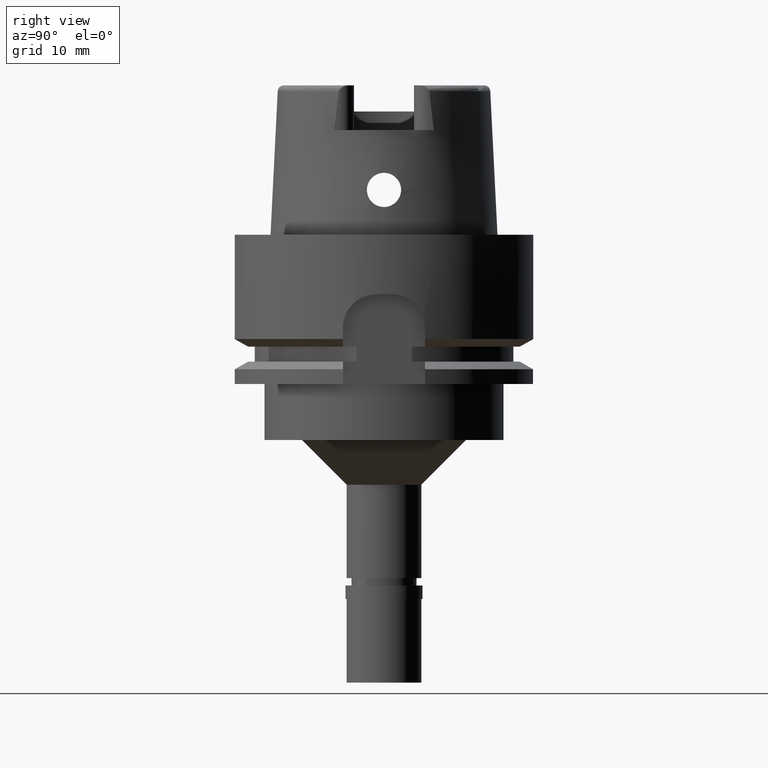
[diagram: clean part render]
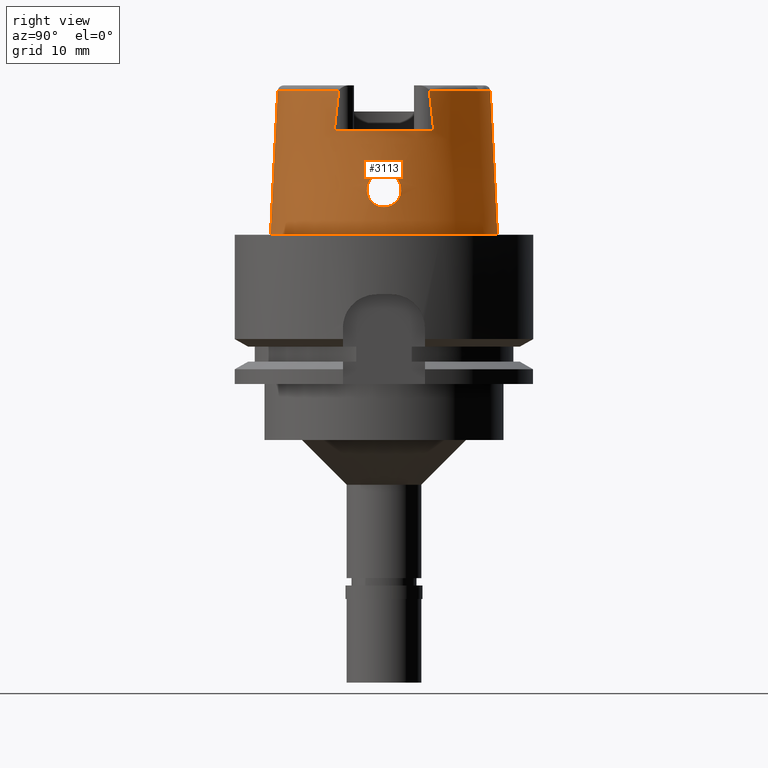
[diagram: same view with one face highlighted and labeled with its STEP entity id]
A machine part, right view. The second image highlights one B-rep face of the part: STEP entity #3113.
In plain terms, the highlighted conical surface has half-angle 2.862 deg.
Its self-contained STEP definition (entity closure, byte-faithful):
#4 = AXIS2_PLACEMENT_3D ( 'NONE', #3296, #374, #4909 ) ;
#13 = CARTESIAN_POINT ( 'NONE',  ( 14.76094070322126406, 1.037310355699659459, 8.053147813454565096 ) ) ;
#39 = EDGE_CURVE ( 'NONE', #3700, #982, #4538, .T. ) ;
#85 = EDGE_LOOP ( 'NONE', ( #4345, #4545, #4017, #4372, #320, #3348, #1562, #503 ) ) ;
#99 = CARTESIAN_POINT ( 'NONE',  ( 12.87997705758999878, 6.068458167862999630, 19.23995141520000018 ) ) ;
#102 = CARTESIAN_POINT ( 'NONE',  ( 14.89626188648040639, 1.604318472934507023, 4.351884099018325180 ) ) ;
#108 = CARTESIAN_POINT ( 'NONE',  ( 14.72916566287326035, -1.626401404984489041, 7.626291570296807265 ) ) ;
#134 = CARTESIAN_POINT ( 'NONE',  ( 14.78353131250833030, -0.2842489653174097852, 8.287348380407511428 ) ) ;
#197 = EDGE_CURVE ( 'NONE', #3015, #5026, #1791, .T. ) ;
#215 = CARTESIAN_POINT ( 'NONE',  ( 14.75228683028402976, -1.217300503844460646, 7.951661517476503072 ) ) ;
#241 = CARTESIAN_POINT ( 'NONE',  ( 14.72809888189785177, -2.300253304591252768, 5.867089944027784831 ) ) ;
#269 = CARTESIAN_POINT ( 'NONE',  ( 15.01500049747999910, 0.0000000000000000000, 3.700000000000000178 ) ) ;
#291 = CARTESIAN_POINT ( 'NONE',  ( 14.76141306264822717, -2.228997816798206077, 5.427562867233243438 ) ) ;
#306 = CARTESIAN_POINT ( 'NONE',  ( 14.72921064385401735, 2.295954934076307463, 5.859146087645040524 ) ) ;
#319 = CARTESIAN_POINT ( 'NONE',  ( 14.70192206656660083, -2.184506991194296255, 6.735960375493996288 ) ) ;
#320 = ORIENTED_EDGE ( 'NONE', *, *, #2165, .F. ) ;
#337 = CARTESIAN_POINT ( 'NONE',  ( 14.70331966261007572, 2.224938590170226327, 6.587761534168429911 ) ) ;
#348 = CARTESIAN_POINT ( 'NONE',  ( 14.83932822437654941, -1.921452617470660540, 4.735836555397628267 ) ) ;
#361 = CARTESIAN_POINT ( 'NONE',  ( 14.76237883554666297, 1.004884296207159577, 8.069153954156249142 ) ) ;
#374 = DIRECTION ( 'NONE',  ( 0.0000000000000000000, 0.0000000000000000000, -1.000000000000000000 ) ) ;
#384 = CARTESIAN_POINT ( 'NONE',  ( 14.76721441685659997, 0.8881538948534819511, 8.121605187691271155 ) ) ;
#408 = CARTESIAN_POINT ( 'NONE',  ( 14.73141757031467236, 2.293500492585035744, 5.823468428067456237 ) ) ;
#443 = CARTESIAN_POINT ( 'NONE',  ( 12.88000000000000078, -6.263516040874591795, 17.57678619938961972 ) ) ;
#503 = ORIENTED_EDGE ( 'NONE', *, *, #4093, .T. ) ;
#506 = CARTESIAN_POINT ( 'NONE',  ( 14.74979855528609640, -1.265112221199402143, 7.920818573383724193 ) ) ;
#567 = VERTEX_POINT ( 'NONE', #3869 ) ;
#584 = CARTESIAN_POINT ( 'NONE',  ( 14.76993198125134299, -0.8162504945633229925, 8.150452494257743652 ) ) ;
#611 = CARTESIAN_POINT ( 'NONE',  ( 14.77914664147333390, -0.5065101421381494884, 8.244802329342256542 ) ) ;
#632 = CARTESIAN_POINT ( 'NONE',  ( 14.70534999502817008, -2.059698684870206353, 7.024110674865093884 ) ) ;
#647 = CARTESIAN_POINT ( 'NONE',  ( 14.91309969645803690, 1.491601944798906176, 4.248719662418796617 ) ) ;
#654 = CARTESIAN_POINT ( 'NONE',  ( 14.83194585459770032, -1.956767935980214146, 4.790935393900420003 ) ) ;
#675 = CARTESIAN_POINT ( 'NONE',  ( 0.0000000000000000000, 0.0000000000000000000, 7.958078640512999903E-13 ) ) ;
#692 = CARTESIAN_POINT ( 'NONE',  ( 14.85759085076207775, -1.829456455894824307, 4.604002460381205530 ) ) ;
#707 = DIRECTION ( 'NONE',  ( 0.8882768779220027167, 0.4593083802296007434, 0.0000000000000000000 ) ) ;
#708 = CARTESIAN_POINT ( 'NONE',  ( 14.90604151170109937, 1.540045616202319945, 4.291572566467155347 ) ) ;
#718 = CARTESIAN_POINT ( 'NONE',  ( 14.70276248150359955, -2.228095642134364507, 6.589857432080705735 ) ) ;
#730 = CARTESIAN_POINT ( 'NONE',  ( 14.73066759139611115, 1.602998560734185007, 7.651081842298379954 ) ) ;
#742 = CARTESIAN_POINT ( 'NONE',  ( 14.71767678490225251, -2.299002971029552089, 6.076937132490123794 ) ) ;
#760 = CARTESIAN_POINT ( 'NONE',  ( 14.79479697821968642, 2.115025011223598206, 5.096068661739830752 ) ) ;
#790 = CARTESIAN_POINT ( 'NONE',  ( 14.71335089346778169, 1.896739896092928257, 7.303073132993857186 ) ) ;
#795 = CARTESIAN_POINT ( 'NONE',  ( 14.78499286951999991, -6.894269632583999541E-14, 8.300000000000000711 ) ) ;
#811 = CARTESIAN_POINT ( 'NONE',  ( 14.73849552591961221, 2.283474533339385992, 5.715437744777036144 ) ) ;
#849 = AXIS2_PLACEMENT_3D ( 'NONE', #4013, #5161, #1942 ) ;
#909 = CARTESIAN_POINT ( 'NONE',  ( 14.72980086668808575, -1.616212006335777218, 7.636443999560624363 ) ) ;
#931 = CARTESIAN_POINT ( 'NONE',  ( 12.87997705758999878, 6.068458167862999630, 19.23995141520000018 ) ) ;
#957 = CARTESIAN_POINT ( 'NONE',  ( 0.0000000000000000000, -15.20000663301000010, 4.547473508865000658E-13 ) ) ;
#964 = CARTESIAN_POINT ( 'NONE',  ( 14.75626768229927599, -1.137446855843879501, 7.999475735240777041 ) ) ;
#982 = VERTEX_POINT ( 'NONE', #957 ) ;
#990 = DIRECTION ( 'NONE',  ( 0.0000000000000000000, 0.04993926899656212642, -0.9987522562738413434 ) ) ;
#1001 = B_SPLINE_CURVE_WITH_KNOTS ( 'NONE', 3,
 ( #4277, #2629, #4555, #99 ),
 .UNSPECIFIED., .F., .F.,
 ( 4, 4 ),
 ( 0.0000000000000000000, 1.000000000000000000 ),
 .UNSPECIFIED. ) ;
#1052 = CARTESIAN_POINT ( 'NONE',  ( 14.70928626239209969, -2.282013294474208198, 6.296367694384101377 ) ) ;
#1074 = CARTESIAN_POINT ( 'NONE',  ( 14.73740491810794140, -2.288222675032499875, 5.723341141485968286 ) ) ;
#1105 = CARTESIAN_POINT ( 'NONE',  ( 14.70734863064782338, -2.012830444105475181, 7.114970398977895627 ) ) ;
#1136 = CARTESIAN_POINT ( 'NONE',  ( 14.97158369231132724, -0.9852969705906398090, 3.921249467705973490 ) ) ;
#1145 = VERTEX_POINT ( 'NONE', #931 ) ;
#1149 = CARTESIAN_POINT ( 'NONE',  ( 14.73773384448932511, 1.484087310098212820, 7.758020320716905616 ) ) ;
#1158 = CARTESIAN_POINT ( 'NONE',  ( 14.72894539698692284, -1.629929366049510664, 7.622753913077731092 ) ) ;
#1171 = CARTESIAN_POINT ( 'NONE',  ( 14.72728581863571229, 1.657573753942912953, 7.594572161408235544 ) ) ;
#1201 = CARTESIAN_POINT ( 'NONE',  ( 14.76682765940899600, 0.8979610686173926659, 8.117470553073811601 ) ) ;
#1226 = CARTESIAN_POINT ( 'NONE',  ( 14.72268394336494346, 1.734741596224586235, 7.511247475915270755 ) ) ;
#1247 = CARTESIAN_POINT ( 'NONE',  ( 14.70267389852734752, 2.192074273967743014, 6.697326476751007895 ) ) ;
#1258 = CARTESIAN_POINT ( 'NONE',  ( 12.88000000001000167, 6.659963896840999986, 14.00000000000000000 ) ) ;
#1272 = EDGE_LOOP ( 'NONE', ( #4593, #4607 ) ) ;
#1340 = CARTESIAN_POINT ( 'NONE',  ( 15.00364356554066170, 0.5092110145715033065, 3.755834319288453571 ) ) ;
#1375 = CARTESIAN_POINT ( 'NONE',  ( 12.88000213910999925, -6.068393227479000451, 19.24000449184000061 ) ) ;
#1399 = CARTESIAN_POINT ( 'NONE',  ( 14.76781814733114828, -0.8726139473902109200, 8.128043842852660461 ) ) ;
#1449 = CARTESIAN_POINT ( 'NONE',  ( 14.74943449546429974, -1.271999119690717661, 7.916253078471561011 ) ) ;
#1464 = CARTESIAN_POINT ( 'NONE',  ( 14.93067013557707945, 1.362086856566310233, 4.144863184133832590 ) ) ;
#1472 = CARTESIAN_POINT ( 'NONE',  ( 14.83552922572939003, -1.939729989854870107, 4.764054186821129910 ) ) ;
#1486 = CARTESIAN_POINT ( 'NONE',  ( 14.89480338870510323, 1.613599235946701960, 4.360980037973203771 ) ) ;
#1495 = CARTESIAN_POINT ( 'NONE',  ( 14.77198997121919355, -2.195975715765364988, 5.315003985169153289 ) ) ;
#1523 = CARTESIAN_POINT ( 'NONE',  ( 14.95143012189384635, -1.189356442182516904, 4.029928682759417846 ) ) ;
#1544 = CARTESIAN_POINT ( 'NONE',  ( 14.73566110849089483, 1.519386367128266802, 7.727102769468446652 ) ) ;
#1554 = CARTESIAN_POINT ( 'NONE',  ( 15.00351367227229993, -0.5887776472077741463, 3.754668201671565786 ) ) ;
#1562 = ORIENTED_EDGE ( 'NONE', *, *, #5102, .F. ) ;
#1567 = CARTESIAN_POINT ( 'NONE',  ( 0.0000000000000000000, 14.23797715755999782, 19.23995141520000018 ) ) ;
#1569 = CARTESIAN_POINT ( 'NONE',  ( 14.72031996579011981, 1.775008434129533130, 7.463222046899928408 ) ) ;
#1577 = CARTESIAN_POINT ( 'NONE',  ( 14.79061044936024416, -2.130786773667060707, 5.134083709936103190 ) ) ;
#1590 = CARTESIAN_POINT ( 'NONE',  ( 14.76437882011165392, 0.9579940866062902627, 8.091063118061819992 ) ) ;
#1618 = CARTESIAN_POINT ( 'NONE',  ( 14.70316431955217951, 2.128797019408599667, 6.870793862270523356 ) ) ;
#1638 = VECTOR ( 'NONE', #990, 1000.000000000000227 ) ;
#1646 = CARTESIAN_POINT ( 'NONE',  ( 14.76533950891336033, 0.9349855305109001646, 8.101492518726468361 ) ) ;
#1766 = CARTESIAN_POINT ( 'NONE',  ( 15.01500049747999910, 0.0000000000000000000, 3.700000000000000178 ) ) ;
#1770 = EDGE_CURVE ( 'NONE', #982, #1851, #3828, .T. ) ;
#1791 = B_SPLINE_CURVE_WITH_KNOTS ( 'NONE', 3,
 ( #1766, #5013, #2679, #1340, #2937, #5119, #2170, #5144, #3048, #2655, #2706, #4299, #4377, #3468, #1464, #3075, #647, #708, #3905, #3749, #102, #1486, #4588, #4743, #3097, #4845, #4042, #5196, #3156, #2808, #4454, #4475, #760, #4020, #2756, #4801, #811, #408, #306, #4896, #2852, #5221, #4401, #3960, #337, #1247, #4876, #5266, #1981, #3579, #1618, #2004, #2351, #790, #3175, #1569, #1226, #2401, #1171, #2444, #2051, #1950, #4066, #3547, #3600, #730, #1544, #1149, #3199, #3651, #4821, #2373, #5237, #2781, #3232, #2831, #3985, #4426, #13, #361, #1590, #1646, #2421, #1201, #2024, #384, #3623, #3254, #4494 ),
 .UNSPECIFIED., .F., .F.,
 ( 4, 2, 2, 1, 1, 2, 2, 2, 2, 2, 1, 2, 2, 2, 2, 2, 1, 2, 2, 2, 2, 2, 2, 2, 2, 1, 1, 2, 2, 2, 2, 1, 1, 1, 1, 1, 2, 2, 2, 2, 2, 1, 1, 2, 2, 2, 2, 1, 1, 2, 2, 4 ),
 ( 0.0000000000000000000, 0.06249999999995378697, 0.09374999999993070821, 0.1093749999999191619, 0.1171874999999133748, 0.1210937499999105021, 0.1249999999999076294, 0.1874999999998597511, 0.2187499999998357147, 0.2343749999998236688, 0.2421874999998176736, 0.2460937499998146760, 0.2499999999998116784, 0.2812499999997887801, 0.3124999999997659095, 0.3437499999997430389, 0.3593749999997318256, 0.3671874999997260525, 0.3749999999997202793, 0.4374999999996746491, 0.4687499999996518341, 0.4843749999996402322, 0.4999999999996286304, 0.5624999999995818900, 0.5937499999995583533, 0.6093749999995463629, 0.6171874999995405897, 0.6210937499995377031, 0.6249999999995348166, 0.6874999999994871880, 0.7187499999994635402, 0.7343749999994518829, 0.7421874999994461097, 0.7460937499994433342, 0.7480468749994418909, 0.7490234374994412248, 0.7495117187494406696, 0.7499999999994402256, 0.7812499999995099476, 0.7968749999995448086, 0.8046874999995623501, 0.8085937499995710098, 0.8105468749995753397, 0.8115234374995774491, 0.8124999999995796696, 0.8437499999996480593, 0.8593749999996822542, 0.8671874999996993516, 0.8710937499997079003, 0.8730468749997123412, 0.8749999999997166711, 1.000000000000000000 ),
 .UNSPECIFIED. ) ;
#1829 = CARTESIAN_POINT ( 'NONE',  ( 14.77731969520875133, -0.5813452209737713927, 8.226696748573793627 ) ) ;
#1850 = CARTESIAN_POINT ( 'NONE',  ( 14.75063943623868212, -1.249098193662250056, 7.931310886379990599 ) ) ;
#1851 = VERTEX_POINT ( 'NONE', #5219 ) ;
#1856 = AXIS2_PLACEMENT_3D ( 'NONE', #5118, #4771, #707 ) ;
#1857 = VERTEX_POINT ( 'NONE', #1567 ) ;
#1882 = CARTESIAN_POINT ( 'NONE',  ( 14.88789433745223789, -1.656179258492392670, 4.404017656866713537 ) ) ;
#1904 = DIRECTION ( 'NONE',  ( 0.9046233376276806570, -0.4262119390858908896, 0.0000000000000000000 ) ) ;
#1912 = CARTESIAN_POINT ( 'NONE',  ( 14.71456604909238131, -2.295400891312349589, 6.149895734832540484 ) ) ;
#1934 = CARTESIAN_POINT ( 'NONE',  ( 14.79786799101558969, -2.103600146392590631, 5.067842618986880154 ) ) ;
#1942 = DIRECTION ( 'NONE',  ( 0.0000000000000000000, -1.000000000000000000, 0.0000000000000000000 ) ) ;
#1950 = CARTESIAN_POINT ( 'NONE',  ( 14.72867387603780820, 1.634446373422290488, 7.618204859427279096 ) ) ;
#1961 = CARTESIAN_POINT ( 'NONE',  ( 14.91207909618325367, -1.508023800578555118, 4.254835684631778747 ) ) ;
#1981 = CARTESIAN_POINT ( 'NONE',  ( 14.70294322156763300, 2.140342991913735560, 6.842036290909745411 ) ) ;
#1989 = CARTESIAN_POINT ( 'NONE',  ( 14.72904493205266263, -1.628333805999924833, 7.624355536929558141 ) ) ;
#1996 = FACE_BOUND ( 'NONE', #1272, .T. ) ;
#2004 = CARTESIAN_POINT ( 'NONE',  ( 14.70427063110079935, 2.079083494800789467, 6.991180673162645576 ) ) ;
#2024 = CARTESIAN_POINT ( 'NONE',  ( 14.76711513610891835, 0.8906777518067782173, 8.120544450447489737 ) ) ;
#2051 = CARTESIAN_POINT ( 'NONE',  ( 14.72849855279022435, 1.637364332527059263, 7.615255836552806024 ) ) ;
#2107 = CARTESIAN_POINT ( 'NONE',  ( 12.88000000001000167, -6.659963896840999986, 14.00000000000000000 ) ) ;
#2124 = VERTEX_POINT ( 'NONE', #1375 ) ;
#2150 = CARTESIAN_POINT ( 'NONE',  ( 14.72948471376317059, -1.621286640787762856, 7.631395977504853434 ) ) ;
#2165 = EDGE_CURVE ( 'NONE', #1857, #1851, #2982, .T. ) ;
#2170 = CARTESIAN_POINT ( 'NONE',  ( 14.99024593489349222, 0.7469297199487586747, 3.824064163264705218 ) ) ;
#2200 = CARTESIAN_POINT ( 'NONE',  ( 14.75791475302674272, -1.102951740043534246, 8.018644828587467188 ) ) ;
#2230 = CARTESIAN_POINT ( 'NONE',  ( 14.74919097063405893, -1.276595555731696363, 7.913194033111063952 ) ) ;
#2278 = CARTESIAN_POINT ( 'NONE',  ( 14.70352688419780485, -2.113724750220179249, 6.906767912902269657 ) ) ;
#2294 = DIRECTION ( 'NONE',  ( 0.0000000000000000000, 0.0000000000000000000, 1.000000000000000000 ) ) ;
#2308 = CARTESIAN_POINT ( 'NONE',  ( 14.89100243181354877, -1.637307387458291741, 4.384654628734276471 ) ) ;
#2339 = CARTESIAN_POINT ( 'NONE',  ( 14.82848291697428422, -1.972819218087882520, 4.817461836429629329 ) ) ;
#2351 = CARTESIAN_POINT ( 'NONE',  ( 14.70693115959205777, 2.018002425557446688, 7.113621795713625851 ) ) ;
#2358 = CARTESIAN_POINT ( 'NONE',  ( 14.78432889782956217, -2.153806137336644166, 5.192639673108054410 ) ) ;
#2373 = CARTESIAN_POINT ( 'NONE',  ( 14.74608645242575911, 1.334487078138858918, 7.873415189314295404 ) ) ;
#2383 = CARTESIAN_POINT ( 'NONE',  ( 14.83794490281902334, -1.928146779080602391, 4.746060414143549622 ) ) ;
#2391 = FACE_OUTER_BOUND ( 'NONE', #85, .T. ) ;
#2401 = CARTESIAN_POINT ( 'NONE',  ( 14.72570758263927360, 1.683945679057690548, 7.566893828202912786 ) ) ;
#2421 = CARTESIAN_POINT ( 'NONE',  ( 14.76639153142401106, 0.9089452896332499421, 8.112801521801705107 ) ) ;
#2444 = CARTESIAN_POINT ( 'NONE',  ( 14.72809154072375648, 1.644141965330468524, 7.608368881129817574 ) ) ;
#2458 = AXIS2_PLACEMENT_3D ( 'NONE', #4701, #3875, #1904 ) ;
#2531 = DIRECTION ( 'NONE',  ( 0.0000000000000000000, -0.04993926899656212642, -0.9987522562738413434 ) ) ;
#2538 = CARTESIAN_POINT ( 'NONE',  ( 14.73731318979628035, -1.491758076798550547, 7.752241050368210651 ) ) ;
#2629 = CARTESIAN_POINT ( 'NONE',  ( 12.88000000000000078, 6.460775660408389243, 15.82979269315812765 ) ) ;
#2655 = CARTESIAN_POINT ( 'NONE',  ( 14.98233822740058230, 0.8555239949476022288, 3.865012213133099284 ) ) ;
#2665 = CARTESIAN_POINT ( 'NONE',  ( 14.71314520760451039, -2.292723817168674572, 6.186472839296770054 ) ) ;
#2679 = CARTESIAN_POINT ( 'NONE',  ( 15.01216126449516963, 0.2892637048435650615, 3.713380585134900436 ) ) ;
#2689 = CARTESIAN_POINT ( 'NONE',  ( 14.77750326184301599, -2.177860363617287742, 5.258569746640842979 ) ) ;
#2706 = CARTESIAN_POINT ( 'NONE',  ( 14.98148037233843333, 0.8665527453526221668, 3.869473469447695102 ) ) ;
#2716 = CARTESIAN_POINT ( 'NONE',  ( 14.70377971806633788, -2.104436167517758971, 6.928321603649896687 ) ) ;
#2744 = CARTESIAN_POINT ( 'NONE',  ( 14.72895246165375838, -1.629815378458664643, 7.622868399798003125 ) ) ;
#2756 = CARTESIAN_POINT ( 'NONE',  ( 14.76163705228052159, 2.230601945538394748, 5.419228496172292964 ) ) ;
#2765 = CARTESIAN_POINT ( 'NONE',  ( 14.78733848402209716, -2.142860414518983347, 5.164385401639593809 ) ) ;
#2781 = CARTESIAN_POINT ( 'NONE',  ( 14.74806601710747245, 1.297697718273494782, 7.898947524009769516 ) ) ;
#2808 = CARTESIAN_POINT ( 'NONE',  ( 14.80666145108414966, 2.067947584724505461, 4.991950655151606853 ) ) ;
#2831 = CARTESIAN_POINT ( 'NONE',  ( 14.74875976441316539, 1.284708981622867396, 7.907755363934277248 ) ) ;
#2852 = CARTESIAN_POINT ( 'NONE',  ( 14.72329670887185671, 2.299987056494397830, 5.962758927932461539 ) ) ;
#2937 = CARTESIAN_POINT ( 'NONE',  ( 15.00009452430962753, 0.5826153368856703541, 3.773708704895870625 ) ) ;
#2958 = B_SPLINE_CURVE_WITH_KNOTS ( 'NONE', 3,
 ( #3629, #443, #4131, #2107 ),
 .UNSPECIFIED., .F., .F.,
 ( 4, 4 ),
 ( 0.0000000000000000000, 1.000000000000000000 ),
 .UNSPECIFIED. ) ;
#2980 = CARTESIAN_POINT ( 'NONE',  ( 14.76817782737699147, -0.8632248248466740659, 8.131869742749655572 ) ) ;
#2982 = LINE ( 'NONE', #4652, #1638 ) ;
#3003 = CARTESIAN_POINT ( 'NONE',  ( 14.76759460663083345, -0.8783932424824197893, 8.125662381899058317 ) ) ;
#3015 = VERTEX_POINT ( 'NONE', #3382 ) ;
#3048 = CARTESIAN_POINT ( 'NONE',  ( 14.98371348087760424, 0.8374793885093481105, 3.857869651532863653 ) ) ;
#3061 = CARTESIAN_POINT ( 'NONE',  ( 14.73105968245777042, -1.595856134888308464, 7.656382820856010518 ) ) ;
#3075 = CARTESIAN_POINT ( 'NONE',  ( 14.91762638340559555, 1.459195804772070559, 4.221671879000171046 ) ) ;
#3085 = CARTESIAN_POINT ( 'NONE',  ( 14.89006758045285039, -1.643003321373217807, 4.390456753668855683 ) ) ;
#3097 = CARTESIAN_POINT ( 'NONE',  ( 14.85945591089870632, 1.820888371125789273, 4.592854992982505991 ) ) ;
#3107 = CARTESIAN_POINT ( 'NONE',  ( 14.82171761973845214, -2.003670476062175076, 4.869976404854369001 ) ) ;
#3113 = ADVANCED_FACE ( 'NONE', ( #2391, #1996 ), #5029, .T. ) ;
#3141 = CARTESIAN_POINT ( 'NONE',  ( 14.95814820038935622, -1.125915301141489744, 3.993185722535882665 ) ) ;
#3156 = CARTESIAN_POINT ( 'NONE',  ( 14.81276665772234402, 2.042069422401535217, 4.941046116325311210 ) ) ;
#3162 = CARTESIAN_POINT ( 'NONE',  ( 15.01500049748000087, -0.2875016380367988456, 3.699999999999999289 ) ) ;
#3175 = CARTESIAN_POINT ( 'NONE',  ( 14.71589562828283171, 1.851379962035807347, 7.367145579385105059 ) ) ;
#3199 = CARTESIAN_POINT ( 'NONE',  ( 14.74145529393720722, 1.418445412900747993, 7.810745774158497134 ) ) ;
#3216 = EDGE_CURVE ( 'NONE', #1857, #1145, #3648, .T. ) ;
#3232 = CARTESIAN_POINT ( 'NONE',  ( 14.74847181687139219, 1.290108341005461012, 7.904111744468584000 ) ) ;
#3241 = CARTESIAN_POINT ( 'NONE',  ( 0.0000000000000000000, -14.23797715755999782, 19.23995141520000018 ) ) ;
#3254 = CARTESIAN_POINT ( 'NONE',  ( 14.78499286952000169, 0.2787144126839783964, 8.300000000000004263 ) ) ;
#3296 = CARTESIAN_POINT ( 'NONE',  ( 0.0000000000000000000, 0.0000000000000000000, 19.23995141520000018 ) ) ;
#3329 = VECTOR ( 'NONE', #2531, 1000.000000000000227 ) ;
#3348 = ORIENTED_EDGE ( 'NONE', *, *, #3216, .T. ) ;
#3382 = CARTESIAN_POINT ( 'NONE',  ( 15.01500049747999910, 0.0000000000000000000, 3.700000000000000178 ) ) ;
#3405 = CARTESIAN_POINT ( 'NONE',  ( 14.77224991932452625, -0.7504254615999531586, 8.174777573236696071 ) ) ;
#3428 = CARTESIAN_POINT ( 'NONE',  ( 14.74230208543511722, -1.406045321559129979, 7.826372174688085437 ) ) ;
#3459 = EDGE_CURVE ( 'NONE', #5026, #3015, #4097, .T. ) ;
#3464 = VERTEX_POINT ( 'NONE', #1258 ) ;
#3468 = CARTESIAN_POINT ( 'NONE',  ( 14.93865089212981445, 1.297507711270354358, 4.099441714252010982 ) ) ;
#3480 = AXIS2_PLACEMENT_3D ( 'NONE', #675, #2294, #5142 ) ;
#3481 = CARTESIAN_POINT ( 'NONE',  ( 14.70337098597961933, -2.119802765025742275, 6.892466584781588246 ) ) ;
#3507 = CARTESIAN_POINT ( 'NONE',  ( 14.72894773792085132, -1.629891511643525526, 7.622791933980454182 ) ) ;
#3531 = CARTESIAN_POINT ( 'NONE',  ( 14.71551364912837023, -1.855953234140409025, 7.366728212503663720 ) ) ;
#3547 = CARTESIAN_POINT ( 'NONE',  ( 14.72890734518945344, 1.630561854090024632, 7.622118380553175143 ) ) ;
#3562 = CARTESIAN_POINT ( 'NONE',  ( 14.97982209528141695, -0.8874059857394125395, 3.878065389904035154 ) ) ;
#3579 = CARTESIAN_POINT ( 'NONE',  ( 14.70307356091887740, 2.133197496645997671, 6.859977719796585660 ) ) ;
#3588 = CARTESIAN_POINT ( 'NONE',  ( 14.70908610060779687, -1.977318169475791976, 7.177217040397958492 ) ) ;
#3600 = CARTESIAN_POINT ( 'NONE',  ( 14.72897150120023646, 1.629494641115276421, 7.623191126883580360 ) ) ;
#3623 = CARTESIAN_POINT ( 'NONE',  ( 14.77912781297125022, 0.5826531953967850619, 8.248701062004810680 ) ) ;
#3629 = CARTESIAN_POINT ( 'NONE',  ( 12.88000213910999925, -6.068393227479000451, 19.24000449184000061 ) ) ;
#3648 = CIRCLE ( 'NONE', #4, 14.23797715755999782 ) ;
#3651 = CARTESIAN_POINT ( 'NONE',  ( 14.74279783466153582, 1.394444610910580362, 7.829369356401103985 ) ) ;
#3700 = VERTEX_POINT ( 'NONE', #4963 ) ;
#3749 = CARTESIAN_POINT ( 'NONE',  ( 14.89874869190051676, 1.588298745072662888, 4.336440298015082462 ) ) ;
#3754 = CARTESIAN_POINT ( 'NONE',  ( 14.76871306554045127, -0.8491380675050167470, 8.137555551864585013 ) ) ;
#3778 = CARTESIAN_POINT ( 'NONE',  ( 14.78499286951999991, -0.1391435398200031592, 8.300000000000000711 ) ) ;
#3805 = CARTESIAN_POINT ( 'NONE',  ( 14.75363996599182315, -1.190469742971417499, 7.968045714024706072 ) ) ;
#3828 = CIRCLE ( 'NONE', #3480, 15.20000663301000010 ) ;
#3857 = CARTESIAN_POINT ( 'NONE',  ( 14.76520744536666285, -0.9397055863374603746, 8.100204151374672534 ) ) ;
#3869 = CARTESIAN_POINT ( 'NONE',  ( 12.88000000001000167, -6.659963896840999986, 14.00000000000000000 ) ) ;
#3875 = DIRECTION ( 'NONE',  ( 0.0000000000000000000, 0.0000000000000000000, -1.000000000000000000 ) ) ;
#3883 = CARTESIAN_POINT ( 'NONE',  ( 14.87704271463016603, -1.720752544005874185, 4.473070447406206185 ) ) ;
#3905 = CARTESIAN_POINT ( 'NONE',  ( 14.90244538073873315, 1.564225718320890746, 4.313569135617521866 ) ) ;
#3919 = CARTESIAN_POINT ( 'NONE',  ( 14.96726521259380505, -1.031969238915589671, 3.944206554070530224 ) ) ;
#3947 = CARTESIAN_POINT ( 'NONE',  ( 14.87055122855922740, -1.757709749342858174, 4.516124516435319869 ) ) ;
#3960 = CARTESIAN_POINT ( 'NONE',  ( 14.70429409588055236, 2.243049519043937678, 6.514172158019237990 ) ) ;
#3970 = CARTESIAN_POINT ( 'NONE',  ( 14.97933055390307189, -0.8934965727319632567, 3.880629311971222073 ) ) ;
#3985 = CARTESIAN_POINT ( 'NONE',  ( 14.75280675805564812, 1.208712125944958915, 7.958799577560252025 ) ) ;
#4001 = CARTESIAN_POINT ( 'NONE',  ( 14.80517555521244866, -2.074776488260732243, 5.004519789442817057 ) ) ;
#4013 = CARTESIAN_POINT ( 'NONE',  ( 0.0000000000000000000, 0.0000000000000000000, 9.619975707601000181 ) ) ;
#4017 = ORIENTED_EDGE ( 'NONE', *, *, #39, .T. ) ;
#4020 = CARTESIAN_POINT ( 'NONE',  ( 14.77595087279880204, 2.186217275628438372, 5.266853072899674970 ) ) ;
#4042 = CARTESIAN_POINT ( 'NONE',  ( 14.83348634340219796, 1.949407324736585068, 4.777192682915639033 ) ) ;
#4066 = CARTESIAN_POINT ( 'NONE',  ( 14.72879095587060760, 1.632498117572953600, 7.620170303020060487 ) ) ;
#4093 = EDGE_CURVE ( 'NONE', #3464, #567, #4149, .T. ) ;
#4097 = B_SPLINE_CURVE_WITH_KNOTS ( 'NONE', 3,
 ( #4286, #3778, #134, #611, #1829, #4173, #3405, #584, #3754, #2980, #1399, #3003, #3857, #4626, #2200, #964, #3805, #215, #1850, #506, #1449, #2230, #5049, #3428, #2538, #5070, #3061, #909, #2150, #108, #1989, #4388, #2744, #3507, #1158, #5155, #4710, #3531, #3588, #1105, #632, #4731, #2716, #2278, #3481, #5227, #319, #718, #4305, #1052, #2665, #1912, #742, #4411, #241, #1074, #5131, #291, #1495, #2689, #2358, #2765, #4809, #1577, #1934, #4001, #4332, #3107, #2339, #654, #1472, #2383, #348, #4362, #692, #3947, #3883, #4753, #1882, #3085, #2308, #1961, #5178, #1523, #3141, #3919, #1136, #5207, #4786, #3970, #3562, #1554, #3162, #269 ),
 .UNSPECIFIED., .F., .F.,
 ( 4, 2, 2, 1, 1, 1, 2, 2, 2, 2, 1, 1, 1, 2, 2, 2, 2, 2, 1, 1, 1, 2, 2, 2, 2, 1, 1, 2, 2, 2, 2, 2, 2, 2, 2, 1, 1, 2, 2, 2, 2, 1, 2, 2, 2, 1, 1, 2, 2, 2, 2, 1, 1, 2, 2, 4 ),
 ( 0.0000000000000000000, 0.06249999999979771736, 0.09374999999969658993, 0.1093749999996461442, 0.1171874999996208311, 0.1210937499996082994, 0.1230468749996020406, 0.1249999999995957956, 0.1562499999994953759, 0.1718749999994451660, 0.1796874999994200750, 0.1835937499994075017, 0.1855468749994012290, 0.1865234374993982314, 0.1874999999993952338, 0.2187499999992967847, 0.2343749999992475463, 0.2421874999992227329, 0.2460937499992103261, 0.2480468749992039146, 0.2490234374992025268, 0.2495117187492030819, 0.2499999999992036370, 0.3124999999992714717, 0.3437499999993052779, 0.3593749999993223754, 0.3671874999993306465, 0.3710937499993348099, 0.3749999999993389177, 0.4374999999994070854, 0.4687499999994413358, 0.4843749999994582667, 0.4999999999994751976, 0.5624999999995424771, 0.5937499999995761168, 0.6093749999995927702, 0.6171874999996010969, 0.6210937499996052047, 0.6249999999996093125, 0.6562499999996441735, 0.6718749999996616040, 0.6796874999996702638, 0.6835937499996743716, 0.6874999999996784794, 0.7187499999997105649, 0.7343749999997264410, 0.7421874999997346567, 0.7460937499997387645, 0.7499999999997428723, 0.8124999999998074873, 0.8437499999998400169, 0.8593749999998561151, 0.8671874999998642197, 0.8710937499998681055, 0.8749999999998719913, 1.000000000000000000 ),
 .UNSPECIFIED. ) ;
#4131 = CARTESIAN_POINT ( 'NONE',  ( 12.88000000000000078, -6.460694174544591384, 15.83011803544295404 ) ) ;
#4149 = CIRCLE ( 'NONE', #1856, 14.49998341749000730 ) ;
#4173 = CARTESIAN_POINT ( 'NONE',  ( 14.77403119193249736, -0.6939996712595325468, 8.193148336366281370 ) ) ;
#4253 = CIRCLE ( 'NONE', #2458, 14.23797715756000315 ) ;
#4277 = CARTESIAN_POINT ( 'NONE',  ( 12.88000000001000167, 6.659963896840999986, 14.00000000000000000 ) ) ;
#4286 = CARTESIAN_POINT ( 'NONE',  ( 14.78499286951999991, -6.894269632583999541E-14, 8.300000000000000711 ) ) ;
#4299 = CARTESIAN_POINT ( 'NONE',  ( 14.97211897083913179, 0.9852389395604793654, 3.918201391700454561 ) ) ;
#4305 = CARTESIAN_POINT ( 'NONE',  ( 14.70725173791876372, -2.271298306154903024, 6.369850645027985259 ) ) ;
#4332 = CARTESIAN_POINT ( 'NONE',  ( 14.81742152559592718, -2.022569680384378898, 4.904266697844562373 ) ) ;
#4345 = ORIENTED_EDGE ( 'NONE', *, *, #4917, .F. ) ;
#4362 = CARTESIAN_POINT ( 'NONE',  ( 14.84898072469026786, -1.874395481075634917, 4.664948826761412093 ) ) ;
#4372 = ORIENTED_EDGE ( 'NONE', *, *, #1770, .T. ) ;
#4377 = CARTESIAN_POINT ( 'NONE',  ( 14.96044792710323357, 1.107249988678632668, 3.978468477639634848 ) ) ;
#4388 = CARTESIAN_POINT ( 'NONE',  ( 14.72897197002128777, -1.629502254266694816, 7.623182842287662631 ) ) ;
#4401 = CARTESIAN_POINT ( 'NONE',  ( 14.70884916733793624, 2.286208832777926414, 6.292960380921720720 ) ) ;
#4411 = CARTESIAN_POINT ( 'NONE',  ( 14.71946415447972356, -2.299931617983100640, 6.038619287512646316 ) ) ;
#4426 = CARTESIAN_POINT ( 'NONE',  ( 14.75631187839886493, 1.137667573944653343, 8.000356808905591421 ) ) ;
#4454 = CARTESIAN_POINT ( 'NONE',  ( 14.80064849366741520, 2.092108367804450086, 5.044252363169833053 ) ) ;
#4475 = CARTESIAN_POINT ( 'NONE',  ( 14.79666035521659140, 2.107820976570307980, 5.079423170683703859 ) ) ;
#4494 = CARTESIAN_POINT ( 'NONE',  ( 14.78499286951999991, -6.894269632583999541E-14, 8.300000000000000711 ) ) ;
#4538 = LINE ( 'NONE', #3241, #3329 ) ;
#4545 = ORIENTED_EDGE ( 'NONE', *, *, #5269, .T. ) ;
#4555 = CARTESIAN_POINT ( 'NONE',  ( 12.88000000000000078, 6.263607519660722822, 17.57637996199146357 ) ) ;
#4588 = CARTESIAN_POINT ( 'NONE',  ( 14.88524694627433043, 1.673835716145720687, 4.420770591002832539 ) ) ;
#4593 = ORIENTED_EDGE ( 'NONE', *, *, #197, .F. ) ;
#4607 = ORIENTED_EDGE ( 'NONE', *, *, #3459, .F. ) ;
#4626 = CARTESIAN_POINT ( 'NONE',  ( 14.76254174477668712, -1.002534320061687190, 8.071386703754374281 ) ) ;
#4652 = CARTESIAN_POINT ( 'NONE',  ( 0.0000000000000000000, 14.23797715755999782, 19.23995141520000018 ) ) ;
#4701 = CARTESIAN_POINT ( 'NONE',  ( 0.0000000000000000000, 0.0000000000000000000, 19.23995141520000018 ) ) ;
#4710 = CARTESIAN_POINT ( 'NONE',  ( 14.72141886632959995, -1.755149534577056469, 7.496977180731058787 ) ) ;
#4731 = CARTESIAN_POINT ( 'NONE',  ( 14.70450256954841350, -2.081533672431136406, 6.979303939556716685 ) ) ;
#4743 = CARTESIAN_POINT ( 'NONE',  ( 14.87669089300160152, 1.724762144763371419, 4.476554210066320927 ) ) ;
#4753 = CARTESIAN_POINT ( 'NONE',  ( 14.88463588509788416, -1.675817749704963999, 4.424480866025168879 ) ) ;
#4771 = DIRECTION ( 'NONE',  ( 0.0000000000000000000, 0.0000000000000000000, -1.000000000000000000 ) ) ;
#4786 = CARTESIAN_POINT ( 'NONE',  ( 14.97809108265116151, -0.9086971803871061182, 3.887102067511101211 ) ) ;
#4801 = CARTESIAN_POINT ( 'NONE',  ( 14.74382373128687718, 2.273238747563965489, 5.642081376080671618 ) ) ;
#4809 = CARTESIAN_POINT ( 'NONE',  ( 14.78936361117865772, -2.135420556005686255, 5.145551896196225883 ) ) ;
#4821 = CARTESIAN_POINT ( 'NONE',  ( 14.74496473211059921, 1.355040248678934134, 7.858529775984060883 ) ) ;
#4845 = CARTESIAN_POINT ( 'NONE',  ( 14.85058688751709433, 1.867004037291457363, 4.654733269128722206 ) ) ;
#4876 = CARTESIAN_POINT ( 'NONE',  ( 14.70255498794172944, 2.174218581856751431, 6.751903596197879054 ) ) ;
#4896 = CARTESIAN_POINT ( 'NONE',  ( 14.72510157508134476, 2.299198539327644841, 5.929750724639593074 ) ) ;
#4909 = DIRECTION ( 'NONE',  ( 0.0000000000000000000, 1.000000000000000000, 0.0000000000000000000 ) ) ;
#4917 = EDGE_CURVE ( 'NONE', #2124, #567, #2958, .T. ) ;
#4963 = CARTESIAN_POINT ( 'NONE',  ( 0.0000000000000000000, -14.23797715755999782, 19.23995141520000018 ) ) ;
#5013 = CARTESIAN_POINT ( 'NONE',  ( 15.01500049748000798, 0.1430271544699412700, 3.700000000000000178 ) ) ;
#5026 = VERTEX_POINT ( 'NONE', #795 ) ;
#5029 = CONICAL_SURFACE ( 'NONE', #849, 14.71899189528999941, 0.04996004983832824653 ) ;
#5049 = CARTESIAN_POINT ( 'NONE',  ( 14.74915384753478342, -1.277298268196183084, 7.912728732249084906 ) ) ;
#5070 = CARTESIAN_POINT ( 'NONE',  ( 14.73231270229745959, -1.575468545349389959, 7.676103092648830284 ) ) ;
#5102 = EDGE_CURVE ( 'NONE', #3464, #1145, #1001, .T. ) ;
#5118 = CARTESIAN_POINT ( 'NONE',  ( 0.0000000000000000000, 0.0000000000000000000, 14.00000000000000000 ) ) ;
#5119 = CARTESIAN_POINT ( 'NONE',  ( 14.99370625009375502, 0.6922392700121542397, 3.806314018960155643 ) ) ;
#5131 = CARTESIAN_POINT ( 'NONE',  ( 14.75496135383648166, -2.246732025499155405, 5.502183779665369201 ) ) ;
#5142 = DIRECTION ( 'NONE',  ( 0.0000000000000000000, -1.000000000000000000, 0.0000000000000000000 ) ) ;
#5144 = CARTESIAN_POINT ( 'NONE',  ( 14.98574308883158324, 0.8103790584041983269, 3.847340703320467625 ) ) ;
#5155 = CARTESIAN_POINT ( 'NONE',  ( 14.72900306058855868, -1.628969731551566547, 7.623717812835894669 ) ) ;
#5161 = DIRECTION ( 'NONE',  ( 0.0000000000000000000, 0.0000000000000000000, -1.000000000000000000 ) ) ;
#5178 = CARTESIAN_POINT ( 'NONE',  ( 14.92935567532961194, -1.380120542212777579, 4.153850966129031264 ) ) ;
#5196 = CARTESIAN_POINT ( 'NONE',  ( 14.82510006996069230, 1.988179157202040415, 4.841178592924878288 ) ) ;
#5207 = CARTESIAN_POINT ( 'NONE',  ( 14.97620187247519219, -0.9315578133222073287, 3.896981744084727417 ) ) ;
#5219 = CARTESIAN_POINT ( 'NONE',  ( 0.0000000000000000000, 15.20000663301000010, 7.958078640512999903E-13 ) ) ;
#5221 = CARTESIAN_POINT ( 'NONE',  ( 14.71406157717081875, 2.300051064112438759, 6.144923505075147396 ) ) ;
#5227 = CARTESIAN_POINT ( 'NONE',  ( 14.70331607478621017, -2.122035784306009365, 6.887162184344736815 ) ) ;
#5237 = CARTESIAN_POINT ( 'NONE',  ( 14.74746210141043079, 1.308969163063078645, 7.891227968485829969 ) ) ;
#5266 = CARTESIAN_POINT ( 'NONE',  ( 14.70277320897272055, 2.150881954488705006, 6.815081273151680108 ) ) ;
#5269 = EDGE_CURVE ( 'NONE', #2124, #3700, #4253, .T. ) ;